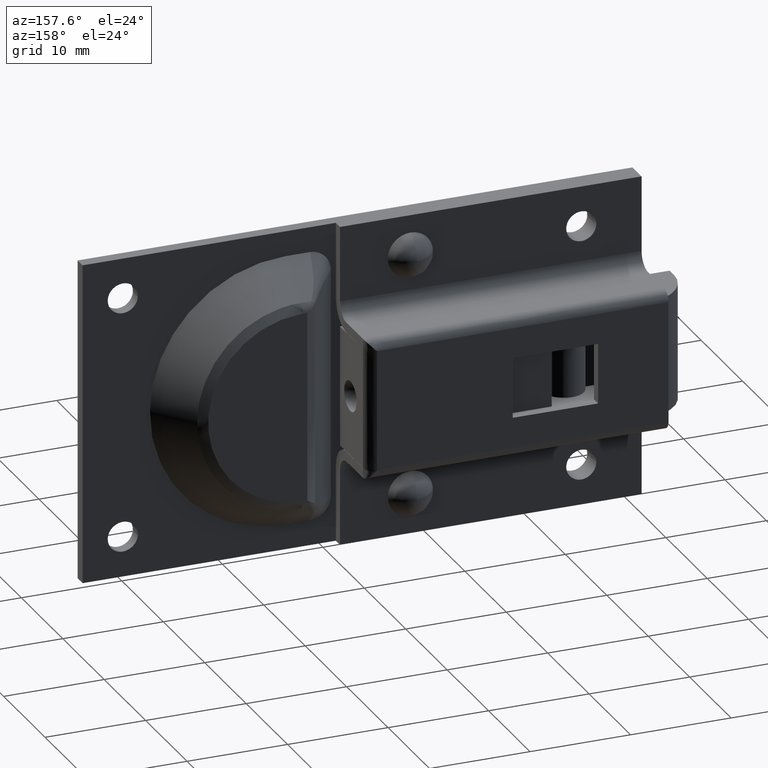
[diagram: clean part render]
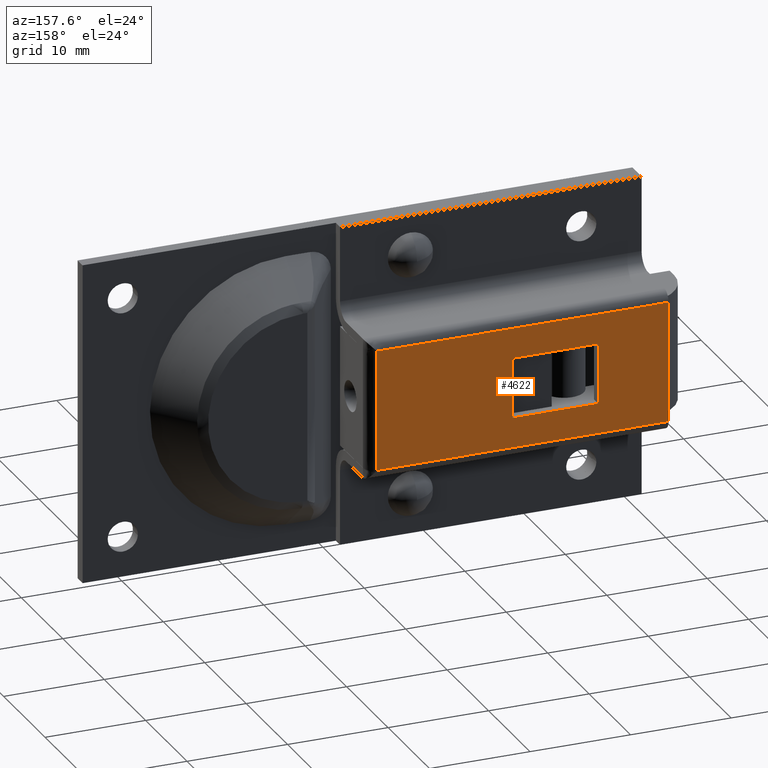
[diagram: same view with one face highlighted and labeled with its STEP entity id]
A machine part, auxiliary view. The second image highlights one B-rep face of the part: STEP entity #4622.
In plain terms, the highlighted face is a freeform B-spline surface patch.
Its self-contained STEP definition (entity closure, byte-faithful):
#3499=CARTESIAN_POINT('',(-3.799972000000000,8.700001000000000,3.0));
#3500=VERTEX_POINT('',#3499);
#3506=CARTESIAN_POINT('',(4.700027999999890,8.699997000000129,3.0));
#3507=VERTEX_POINT('',#3506);
#3508=CARTESIAN_POINT('',(4.700027999999890,8.699997000000129,3.0));
#3509=CARTESIAN_POINT('',(-3.799972000000000,8.700001000000000,3.0));
#3510=QUASI_UNIFORM_CURVE('',1,(#3508,#3509),.UNSPECIFIED.,.F.,.U.);
#3511=EDGE_CURVE('',#3507,#3500,#3510,.T.);
#3534=CARTESIAN_POINT('',(4.700027999999890,8.699997000000129,-3.0));
#3535=VERTEX_POINT('',#3534);
#3536=CARTESIAN_POINT('',(4.700027999999890,8.699997000000129,-3.0));
#3537=CARTESIAN_POINT('',(4.700027999999890,8.699997000000129,3.0));
#3538=QUASI_UNIFORM_CURVE('',1,(#3536,#3537),.UNSPECIFIED.,.F.,.U.);
#3539=EDGE_CURVE('',#3535,#3507,#3538,.T.);
#3562=CARTESIAN_POINT('',(-3.799972000000110,8.699997000000129,-3.0));
#3563=VERTEX_POINT('',#3562);
#3564=CARTESIAN_POINT('',(-3.799972000000110,8.699997000000129,-3.0));
#3565=CARTESIAN_POINT('',(4.700027999999890,8.699997000000129,-3.0));
#3566=QUASI_UNIFORM_CURVE('',1,(#3564,#3565),.UNSPECIFIED.,.F.,.U.);
#3567=EDGE_CURVE('',#3563,#3535,#3566,.T.);
#3590=CARTESIAN_POINT('',(-3.799972000000000,8.700001000000000,3.0));
#3591=CARTESIAN_POINT('',(-3.799972000000110,8.699997000000129,-3.0));
#3592=QUASI_UNIFORM_CURVE('',1,(#3590,#3591),.UNSPECIFIED.,.F.,.U.);
#3593=EDGE_CURVE('',#3500,#3563,#3592,.T.);
#3634=CARTESIAN_POINT('',(18.200011999999901,8.700001000000000,-6.0));
#3635=VERTEX_POINT('',#3634);
#3649=CARTESIAN_POINT('',(18.200011999999901,8.700001000000000,6.0));
#3650=VERTEX_POINT('',#3649);
#3651=CARTESIAN_POINT('',(18.200011999999901,8.700001000000000,6.0));
#3652=CARTESIAN_POINT('',(18.200011999999901,8.700001000000000,-6.0));
#3653=QUASI_UNIFORM_CURVE('',1,(#3651,#3652),.UNSPECIFIED.,.F.,.U.);
#3654=EDGE_CURVE('',#3650,#3635,#3653,.T.);
#3715=CARTESIAN_POINT('',(-10.799987999999900,8.700001000000000,6.0));
#3716=VERTEX_POINT('',#3715);
#3717=CARTESIAN_POINT('',(-10.799987999999900,8.700001000000000,6.0));
#3718=CARTESIAN_POINT('',(18.200011999999901,8.700001000000000,6.0));
#3719=QUASI_UNIFORM_CURVE('',1,(#3717,#3718),.UNSPECIFIED.,.F.,.U.);
#3720=EDGE_CURVE('',#3716,#3650,#3719,.T.);
#3752=CARTESIAN_POINT('',(-10.799987999999900,8.700001000000000,-6.0));
#3753=VERTEX_POINT('',#3752);
#3754=CARTESIAN_POINT('',(18.200011999999901,8.700001000000000,-6.0));
#3755=CARTESIAN_POINT('',(-10.799987999999900,8.700001000000000,-6.0));
#3756=QUASI_UNIFORM_CURVE('',1,(#3754,#3755),.UNSPECIFIED.,.F.,.U.);
#3757=EDGE_CURVE('',#3635,#3753,#3756,.T.);
#4058=CARTESIAN_POINT('',(-10.799987999999900,8.700001000000000,6.0));
#4059=CARTESIAN_POINT('',(-10.799987999999900,8.700001000000000,-6.0));
#4060=QUASI_UNIFORM_CURVE('',1,(#4058,#4059),.UNSPECIFIED.,.F.,.U.);
#4061=EDGE_CURVE('',#3716,#3753,#4060,.T.);
#4605=CARTESIAN_POINT('',(-12.248537943792270,8.700001000000000,-6.599399976741672));
#4606=CARTESIAN_POINT('',(-12.248537943792270,8.700001000000000,6.599400298606754));
#4607=CARTESIAN_POINT('',(19.648562721632882,8.700001000000000,-6.599399976741672));
#4608=CARTESIAN_POINT('',(19.648562721632882,8.700001000000000,6.599400298606754));
#4609=B_SPLINE_SURFACE_WITH_KNOTS('',1,1,((#4605,#4607),(#4606,#4608)),.UNSPECIFIED.,.F.,.F.,.U.,(2,2),(2,2),(0.0,13.198800275348431),(0.0,31.897100665425150),.UNSPECIFIED.);
#4610=ORIENTED_EDGE('',*,*,#3720,.T.);
#4611=ORIENTED_EDGE('',*,*,#3654,.T.);
#4612=ORIENTED_EDGE('',*,*,#3757,.T.);
#4613=ORIENTED_EDGE('',*,*,#4061,.F.);
#4614=EDGE_LOOP('',(#4610,#4611,#4612,#4613));
#4615=FACE_OUTER_BOUND('',#4614,.T.);
#4616=ORIENTED_EDGE('',*,*,#3511,.T.);
#4617=ORIENTED_EDGE('',*,*,#3593,.T.);
#4618=ORIENTED_EDGE('',*,*,#3567,.T.);
#4619=ORIENTED_EDGE('',*,*,#3539,.T.);
#4620=EDGE_LOOP('',(#4616,#4617,#4618,#4619));
#4621=FACE_BOUND('',#4620,.T.);
#4622=ADVANCED_FACE('',(#4615,#4621),#4609,.T.);